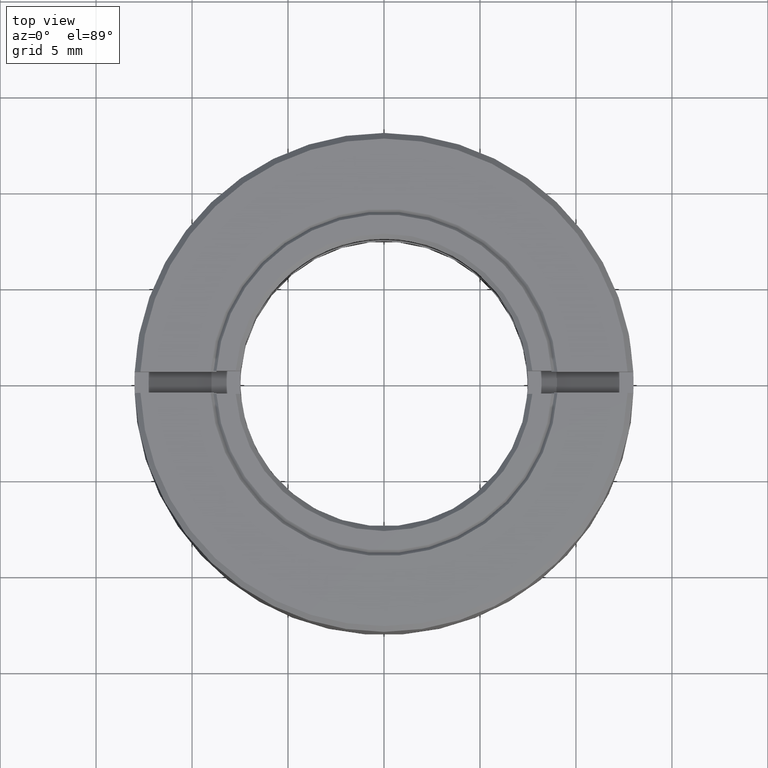
[diagram: clean part render]
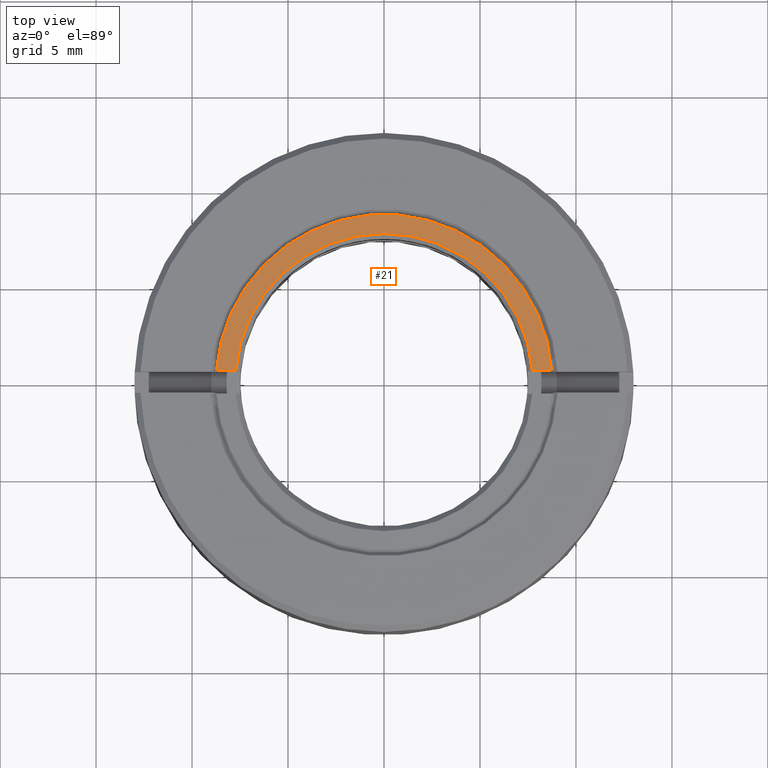
[diagram: same view with one face highlighted and labeled with its STEP entity id]
A machine part, top view. The second image highlights one B-rep face of the part: STEP entity #21.
In plain terms, the highlighted planar face has unit normal (0, 0, 1).
Its self-contained STEP definition (entity closure, byte-faithful):
#21 = ADVANCED_FACE ( 'NONE', ( #1363 ), #788, .T. ) ;
#22 = EDGE_CURVE ( 'NONE', #384, #134, #709, .T. ) ;
#65 = ORIENTED_EDGE ( 'NONE', *, *, #277, .T. ) ;
#89 = EDGE_CURVE ( 'NONE', #384, #1201, #161, .T. ) ;
#130 = CARTESIAN_POINT ( 'NONE',  ( 0.000000000000000000, 0.6000000000000000888, 5.000000000000000000 ) ) ;
#134 = VERTEX_POINT ( 'NONE', #1437 ) ;
#161 = LINE ( 'NONE', #1188, #1161 ) ;
#181 = CARTESIAN_POINT ( 'NONE',  ( 0.000000000000000000, 0.000000000000000000, 5.000000000000000000 ) ) ;
#277 = EDGE_CURVE ( 'NONE', #1201, #1435, #346, .T. ) ;
#293 = CARTESIAN_POINT ( 'NONE',  ( -8.729404332484547169, 0.6000000000000000888, 4.999999999999999112 ) ) ;
#298 = AXIS2_PLACEMENT_3D ( 'NONE', #551, #680, #1174 ) ;
#344 = ORIENTED_EDGE ( 'NONE', *, *, #1493, .T. ) ;
#346 = CIRCLE ( 'NONE', #1259, 7.749999999999993783 ) ;
#351 = CARTESIAN_POINT ( 'NONE',  ( 0.000000000000000000, 0.000000000000000000, 5.000000000000000000 ) ) ;
#384 = VERTEX_POINT ( 'NONE', #293 ) ;
#414 = DIRECTION ( 'NONE',  ( 0.000000000000000000, 0.000000000000000000, 1.000000000000000000 ) ) ;
#551 = CARTESIAN_POINT ( 'NONE',  ( 0.000000000000000000, 0.000000000000000000, 5.000000000000001776 ) ) ;
#583 = DIRECTION ( 'NONE',  ( 1.000000000000000000, 0.000000000000000000, -0.000000000000000000 ) ) ;
#595 = CARTESIAN_POINT ( 'NONE',  ( -7.726739286400781559, 0.6000000000000000888, 5.000000000000603961 ) ) ;
#672 = DIRECTION ( 'NONE',  ( 1.000000000000000000, 0.000000000000000000, -0.000000000000000000 ) ) ;
#680 = DIRECTION ( 'NONE',  ( 0.000000000000000000, 0.000000000000000000, -1.000000000000000000 ) ) ;
#709 = CIRCLE ( 'NONE', #298, 8.749999999999998224 ) ;
#736 = EDGE_LOOP ( 'NONE', ( #932, #65, #344, #1099 ) ) ;
#788 = PLANE ( 'NONE',  #1419 ) ;
#799 = CARTESIAN_POINT ( 'NONE',  ( 7.726739286399944895, 0.6000000000000000888, 4.999999999999769074 ) ) ;
#881 = DIRECTION ( 'NONE',  ( 1.000000000000000000, 0.000000000000000000, 0.000000000000000000 ) ) ;
#928 = LINE ( 'NONE', #130, #1062 ) ;
#932 = ORIENTED_EDGE ( 'NONE', *, *, #89, .T. ) ;
#934 = DIRECTION ( 'NONE',  ( 1.000000000000000000, 0.000000000000000000, -0.000000000000000000 ) ) ;
#1062 = VECTOR ( 'NONE', #583, 1000.000000000000000 ) ;
#1099 = ORIENTED_EDGE ( 'NONE', *, *, #22, .F. ) ;
#1103 = DIRECTION ( 'NONE',  ( -0.000000000000000000, -0.000000000000000000, -1.000000000000000000 ) ) ;
#1161 = VECTOR ( 'NONE', #934, 1000.000000000000000 ) ;
#1174 = DIRECTION ( 'NONE',  ( -1.000000000000000000, 0.000000000000000000, 0.000000000000000000 ) ) ;
#1188 = CARTESIAN_POINT ( 'NONE',  ( 0.000000000000000000, 0.6000000000000000888, 5.000000000000000000 ) ) ;
#1201 = VERTEX_POINT ( 'NONE', #595 ) ;
#1259 = AXIS2_PLACEMENT_3D ( 'NONE', #351, #1103, #881 ) ;
#1363 = FACE_OUTER_BOUND ( 'NONE', #736, .T. ) ;
#1419 = AXIS2_PLACEMENT_3D ( 'NONE', #181, #414, #672 ) ;
#1435 = VERTEX_POINT ( 'NONE', #799 ) ;
#1437 = CARTESIAN_POINT ( 'NONE',  ( 8.729404332484547169, 0.6000000000000000888, 5.000000000000000888 ) ) ;
#1493 = EDGE_CURVE ( 'NONE', #1435, #134, #928, .T. ) ;